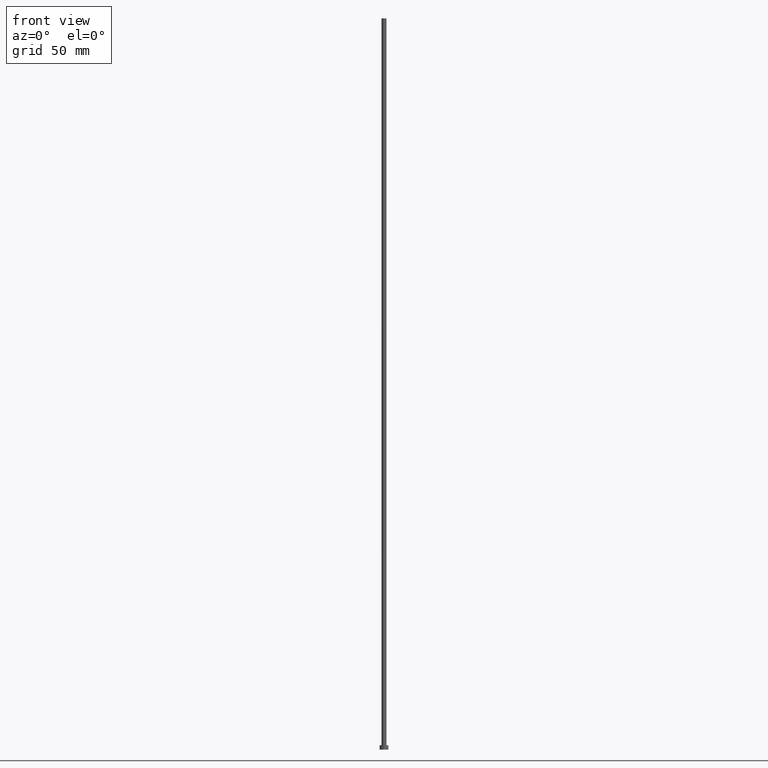
[diagram: clean part render]
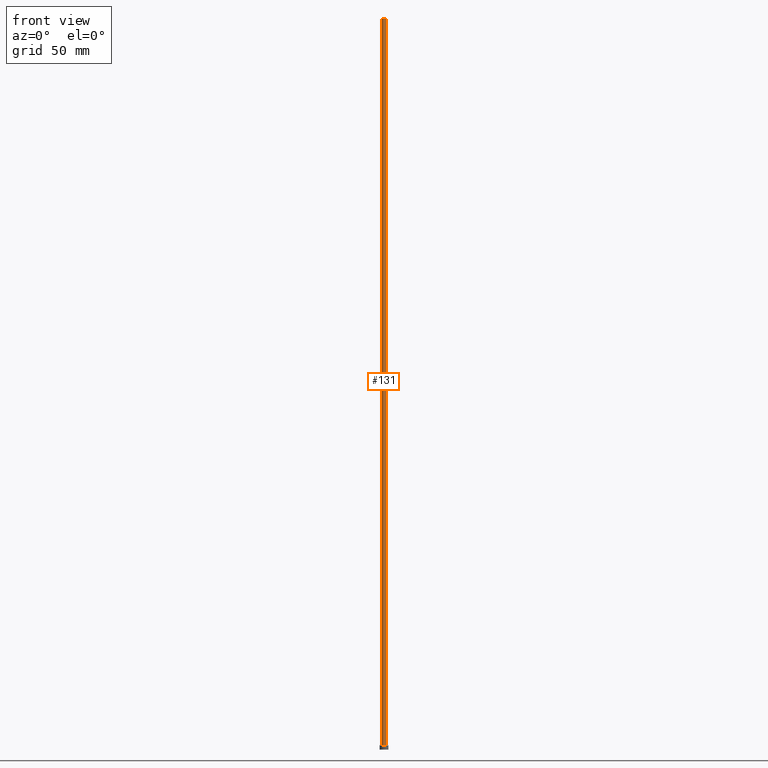
[diagram: same view with one face highlighted and labeled with its STEP entity id]
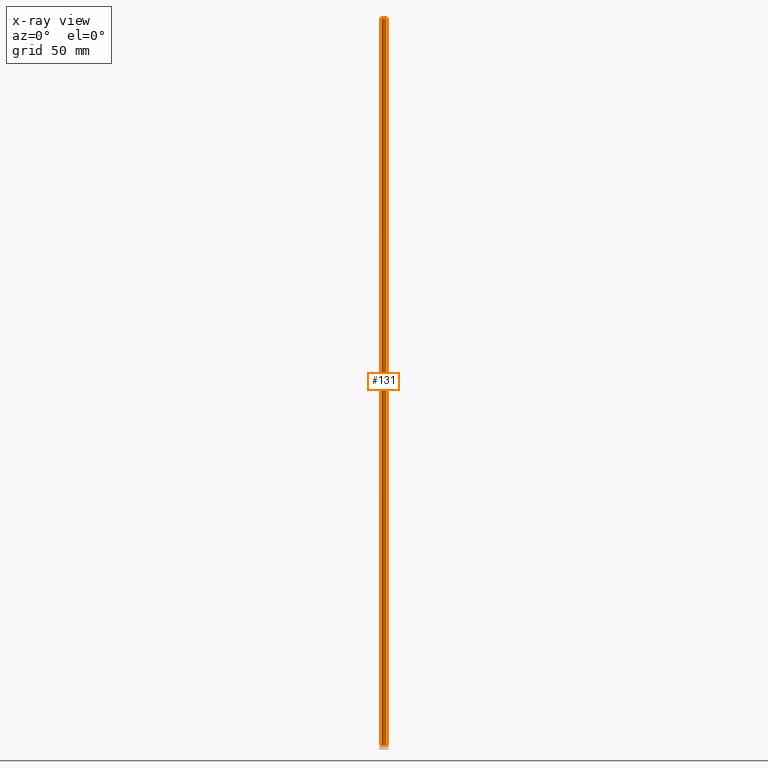
[diagram: x-ray of the same camera — body ghosted, the highlighted face saturated]
A machine part, front view. The second image highlights one B-rep face of the part: STEP entity #131.
The next image is the same camera in x-ray: the body ghosted, the highlighted face saturated — about 0% of this face is hidden behind the body in this view.
In plain terms, the highlighted cylindrical surface (edge-blend (fillet) strip) has radius 1.75 mm, axis along (-0, -0, -1).
Its self-contained STEP definition (entity closure, byte-faithful):
#2 = CARTESIAN_POINT ( 'NONE',  ( 1.750000000000000000, 2.143131898507867804E-16, 500.0000000000000000 ) ) ;
#21 = ORIENTED_EDGE ( 'NONE', *, *, #54, .F. ) ;
#26 = CARTESIAN_POINT ( 'NONE',  ( 0.000000000000000000, 0.000000000000000000, 500.0000000000000000 ) ) ;
#40 = VERTEX_POINT ( 'NONE', #127 ) ;
#43 = EDGE_CURVE ( 'NONE', #165, #161, #237, .T. ) ;
#49 = DIRECTION ( 'NONE',  ( 0.000000000000000000, 0.000000000000000000, 1.000000000000000000 ) ) ;
#52 = CARTESIAN_POINT ( 'NONE',  ( 0.000000000000000000, 0.000000000000000000, 500.0000000000000000 ) ) ;
#54 = EDGE_CURVE ( 'NONE', #143, #40, #85, .T. ) ;
#55 = AXIS2_PLACEMENT_3D ( 'NONE', #26, #60, #190 ) ;
#60 = DIRECTION ( 'NONE',  ( 0.000000000000000000, 0.000000000000000000, 1.000000000000000000 ) ) ;
#62 = CARTESIAN_POINT ( 'NONE',  ( -1.750000000000000000, 0.000000000000000000, 500.0000000000000000 ) ) ;
#64 = CARTESIAN_POINT ( 'NONE',  ( 1.750000000000000000, 2.143131898507867804E-16, 500.0000000000000000 ) ) ;
#85 = LINE ( 'NONE', #64, #253 ) ;
#90 = VECTOR ( 'NONE', #158, 1000.000000000000000 ) ;
#94 = ORIENTED_EDGE ( 'NONE', *, *, #43, .T. ) ;
#96 = CIRCLE ( 'NONE', #55, 1.750000000000000000 ) ;
#104 = EDGE_CURVE ( 'NONE', #165, #143, #96, .T. ) ;
#106 = CARTESIAN_POINT ( 'NONE',  ( -1.750000000000000000, 0.000000000000000000, 3.000000000000000000 ) ) ;
#113 = EDGE_CURVE ( 'NONE', #161, #40, #207, .T. ) ;
#121 = ORIENTED_EDGE ( 'NONE', *, *, #113, .T. ) ;
#127 = CARTESIAN_POINT ( 'NONE',  ( 1.750000000000000000, 2.143131898507867804E-16, 3.000000000000000000 ) ) ;
#131 = ADVANCED_FACE ( 'NONE', ( #202 ), #215, .T. ) ;
#133 = AXIS2_PLACEMENT_3D ( 'NONE', #210, #49, #233 ) ;
#136 = DIRECTION ( 'NONE',  ( -1.000000000000000000, 0.000000000000000000, 0.000000000000000000 ) ) ;
#143 = VERTEX_POINT ( 'NONE', #2 ) ;
#146 = EDGE_LOOP ( 'NONE', ( #21, #242, #94, #121 ) ) ;
#158 = DIRECTION ( 'NONE',  ( -0.000000000000000000, -0.000000000000000000, -1.000000000000000000 ) ) ;
#161 = VERTEX_POINT ( 'NONE', #106 ) ;
#165 = VERTEX_POINT ( 'NONE', #62 ) ;
#190 = DIRECTION ( 'NONE',  ( 1.000000000000000000, 0.000000000000000000, 0.000000000000000000 ) ) ;
#196 = DIRECTION ( 'NONE',  ( -0.000000000000000000, -0.000000000000000000, -1.000000000000000000 ) ) ;
#202 = FACE_OUTER_BOUND ( 'NONE', #146, .T. ) ;
#207 = CIRCLE ( 'NONE', #133, 1.750000000000000000 ) ;
#209 = CARTESIAN_POINT ( 'NONE',  ( -1.750000000000000000, 0.000000000000000000, 500.0000000000000000 ) ) ;
#210 = CARTESIAN_POINT ( 'NONE',  ( 0.000000000000000000, 0.000000000000000000, 3.000000000000000000 ) ) ;
#215 = CYLINDRICAL_SURFACE ( 'NONE', #230, 1.750000000000000000 ) ;
#230 = AXIS2_PLACEMENT_3D ( 'NONE', #52, #196, #136 ) ;
#233 = DIRECTION ( 'NONE',  ( 1.000000000000000000, 0.000000000000000000, 0.000000000000000000 ) ) ;
#237 = LINE ( 'NONE', #209, #90 ) ;
#242 = ORIENTED_EDGE ( 'NONE', *, *, #104, .F. ) ;
#247 = DIRECTION ( 'NONE',  ( -0.000000000000000000, -0.000000000000000000, -1.000000000000000000 ) ) ;
#253 = VECTOR ( 'NONE', #247, 1000.000000000000000 ) ;